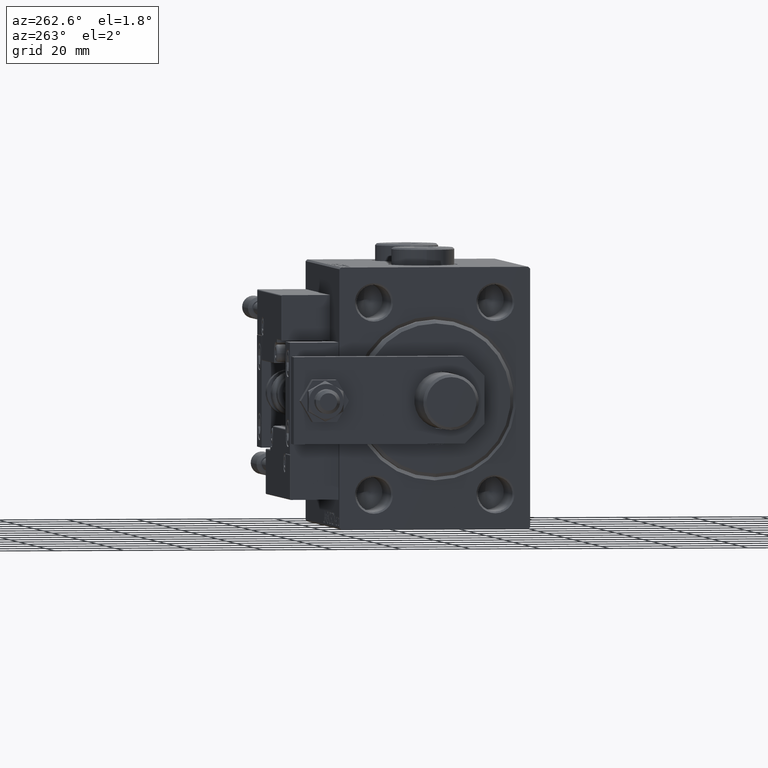
[diagram: clean part render]
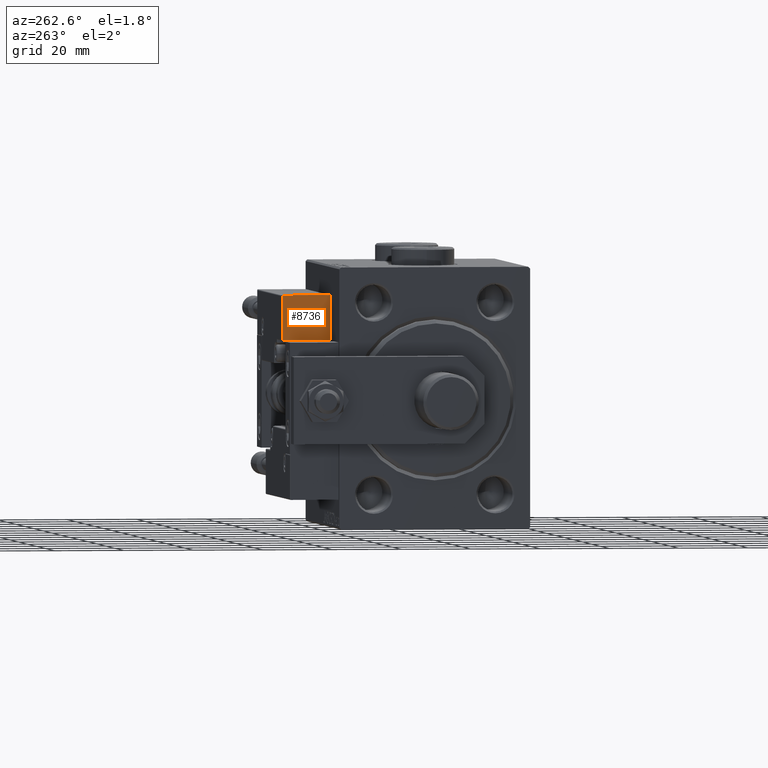
[diagram: same view with one face highlighted and labeled with its STEP entity id]
A machine part, auxiliary view. The second image highlights one B-rep face of the part: STEP entity #8736.
In plain terms, the highlighted planar face has unit normal (1, 0, 0).
Its self-contained STEP definition (entity closure, byte-faithful):
#80 = CARTESIAN_POINT ( 'NONE',  ( 27.00000000000006395, 20.00000000000001776, 14.00000000000000000 ) ) ;
#519 = DIRECTION ( 'NONE',  ( 0.000000000000000000, 1.000000000000000000, 0.000000000000000000 ) ) ;
#2998 = FACE_OUTER_BOUND ( 'NONE', #3454, .T. ) ;
#3454 = EDGE_LOOP ( 'NONE', ( #4498, #45086, #18254, #17311 ) ) ;
#3629 = LINE ( 'NONE', #27633, #48097 ) ;
#4498 = ORIENTED_EDGE ( 'NONE', *, *, #8428, .F. ) ;
#4840 = CARTESIAN_POINT ( 'NONE',  ( 27.00000000000006395, 7.000000000000007994, 14.00000000000000000 ) ) ;
#5352 = CARTESIAN_POINT ( 'NONE',  ( 27.00000000000006395, 7.000000000000007994, 0.000000000000000000 ) ) ;
#5428 = VERTEX_POINT ( 'NONE', #30712 ) ;
#5622 = LINE ( 'NONE', #5352, #46637 ) ;
#6099 = CARTESIAN_POINT ( 'NONE',  ( 27.00000000000006395, 7.000000000000007994, 13.70000000000000107 ) ) ;
#7809 = EDGE_CURVE ( 'NONE', #30537, #25085, #50091, .T. ) ;
#8413 = DIRECTION ( 'NONE',  ( -0.000000000000000000, -0.000000000000000000, -1.000000000000000000 ) ) ;
#8428 = EDGE_CURVE ( 'NONE', #30537, #35948, #20287, .T. ) ;
#8736 = ADVANCED_FACE ( 'NONE', ( #2998 ), #21024, .F. ) ;
#17311 = ORIENTED_EDGE ( 'NONE', *, *, #51468, .T. ) ;
#18254 = ORIENTED_EDGE ( 'NONE', *, *, #23600, .T. ) ;
#20287 = LINE ( 'NONE', #80, #28527 ) ;
#21024 = PLANE ( 'NONE',  #44902 ) ;
#22530 = VECTOR ( 'NONE', #25062, 1000.000000000000000 ) ;
#23580 = CARTESIAN_POINT ( 'NONE',  ( 27.00000000000006395, 20.00000000000001776, 13.70000000000000107 ) ) ;
#23593 = DIRECTION ( 'NONE',  ( -0.000000000000000000, -0.000000000000000000, -1.000000000000000000 ) ) ;
#23600 = EDGE_CURVE ( 'NONE', #25085, #5428, #3629, .T. ) ;
#25062 = DIRECTION ( 'NONE',  ( -0.000000000000000000, -1.000000000000000000, -0.000000000000000000 ) ) ;
#25085 = VERTEX_POINT ( 'NONE', #52279 ) ;
#27633 = CARTESIAN_POINT ( 'NONE',  ( 27.00000000000006395, 7.000000000000007994, 14.00000000000000000 ) ) ;
#28527 = VECTOR ( 'NONE', #8413, 1000.000000000000000 ) ;
#30537 = VERTEX_POINT ( 'NONE', #23580 ) ;
#30712 = CARTESIAN_POINT ( 'NONE',  ( 27.00000000000006395, 7.000000000000007994, 0.000000000000000000 ) ) ;
#35948 = VERTEX_POINT ( 'NONE', #42896 ) ;
#37471 = DIRECTION ( 'NONE',  ( -1.000000000000000000, 0.000000000000000000, 0.000000000000000000 ) ) ;
#42896 = CARTESIAN_POINT ( 'NONE',  ( 27.00000000000006395, 20.00000000000001776, 0.000000000000000000 ) ) ;
#44902 = AXIS2_PLACEMENT_3D ( 'NONE', #4840, #37471, #50105 ) ;
#45086 = ORIENTED_EDGE ( 'NONE', *, *, #7809, .T. ) ;
#46637 = VECTOR ( 'NONE', #519, 1000.000000000000000 ) ;
#48097 = VECTOR ( 'NONE', #23593, 1000.000000000000000 ) ;
#50091 = LINE ( 'NONE', #6099, #22530 ) ;
#50105 = DIRECTION ( 'NONE',  ( 0.000000000000000000, 0.000000000000000000, 1.000000000000000000 ) ) ;
#51468 = EDGE_CURVE ( 'NONE', #5428, #35948, #5622, .T. ) ;
#52279 = CARTESIAN_POINT ( 'NONE',  ( 27.00000000000006395, 7.000000000000007994, 13.70000000000000107 ) ) ;